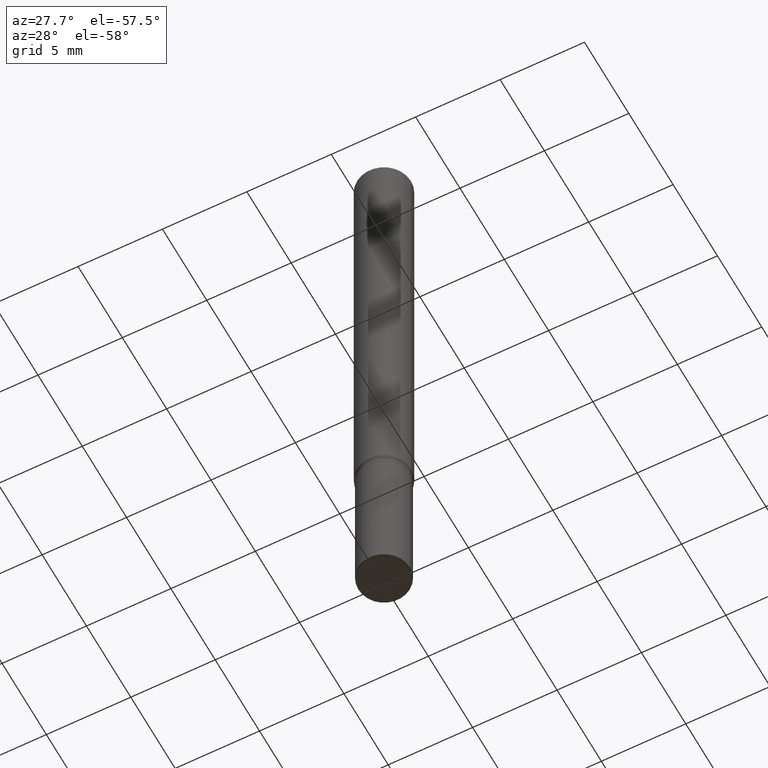
[diagram: clean part render]
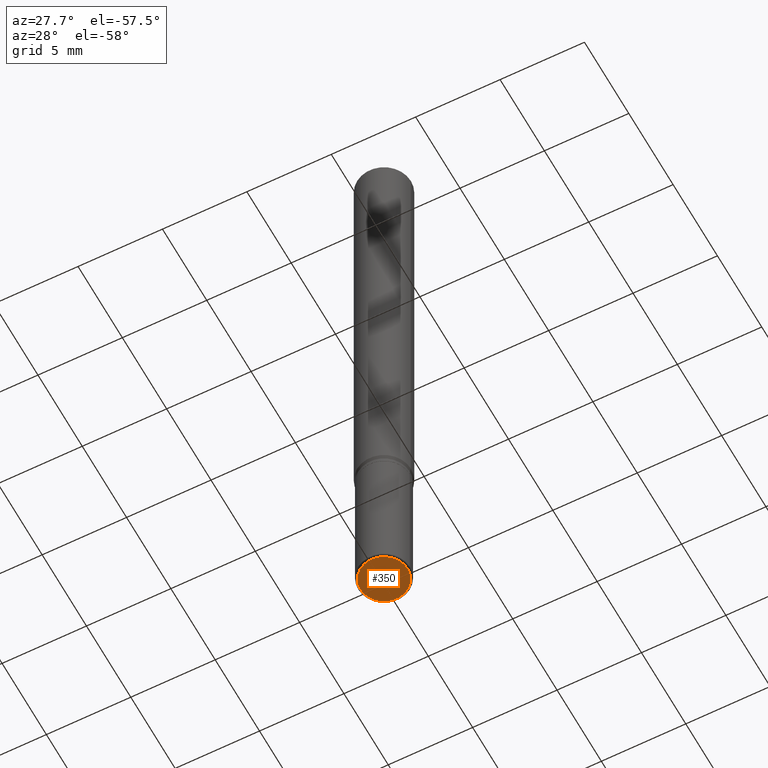
[diagram: same view with one face highlighted and labeled with its STEP entity id]
A machine part, auxiliary view. The second image highlights one B-rep face of the part: STEP entity #350.
In plain terms, the highlighted planar face has unit normal (-0, 0, 1).
Its self-contained STEP definition (entity closure, byte-faithful):
#16 = CARTESIAN_POINT ( 'NONE',  ( 3.582686580359767159E-29, -5.359686688179454114E-15, -1.500000000000000444 ) ) ;
#43 = DIRECTION ( 'NONE',  ( -2.445468806185136597E-29, 3.491481338843145583E-15, 1.000000000000000000 ) ) ;
#63 = CARTESIAN_POINT ( 'NONE',  ( -0.05499999999999999334, -4.819931231855553084E-15, -1.500000000000000444 ) ) ;
#104 = DIRECTION ( 'NONE',  ( 1.000000000000000000, -6.982962677686265922E-15, 4.876176775795935793E-29 ) ) ;
#110 = ORIENTED_EDGE ( 'NONE', *, *, #274, .F. ) ;
#131 = DIRECTION ( 'NONE',  ( 1.000000000000000000, -6.982962677686263555E-15, 0.000000000000000000 ) ) ;
#137 = CARTESIAN_POINT ( 'NONE',  ( 3.668203209277706016E-29, -5.237222008264719754E-15, -1.500000000000000444 ) ) ;
#172 = DIRECTION ( 'NONE',  ( 1.000000000000000000, -6.982962677686263555E-15, 0.000000000000000000 ) ) ;
#177 = PLANE ( 'NONE',  #402 ) ;
#225 = AXIS2_PLACEMENT_3D ( 'NONE', #256, #43, #172 ) ;
#234 = AXIS2_PLACEMENT_3D ( 'NONE', #137, #330, #131 ) ;
#251 = EDGE_CURVE ( 'NONE', #324, #377, #430, .T. ) ;
#256 = CARTESIAN_POINT ( 'NONE',  ( 3.668203209277706016E-29, -5.237222008264719754E-15, -1.500000000000000444 ) ) ;
#274 = EDGE_CURVE ( 'NONE', #377, #324, #296, .T. ) ;
#296 = CIRCLE ( 'NONE', #225, 0.05499999999999999334 ) ;
#309 = FACE_OUTER_BOUND ( 'NONE', #343, .T. ) ;
#310 = ORIENTED_EDGE ( 'NONE', *, *, #251, .F. ) ;
#324 = VERTEX_POINT ( 'NONE', #376 ) ;
#330 = DIRECTION ( 'NONE',  ( -2.445468806185136597E-29, 3.491481338843145583E-15, 1.000000000000000000 ) ) ;
#343 = EDGE_LOOP ( 'NONE', ( #310, #110 ) ) ;
#350 = ADVANCED_FACE ( 'NONE', ( #309 ), #177, .F. ) ;
#376 = CARTESIAN_POINT ( 'NONE',  ( 0.05499999999999999334, -5.621284955537463950E-15, -1.500000000000000444 ) ) ;
#377 = VERTEX_POINT ( 'NONE', #63 ) ;
#402 = AXIS2_PLACEMENT_3D ( 'NONE', #16, #424, #104 ) ;
#424 = DIRECTION ( 'NONE',  ( -2.438088387897960049E-29, 3.491481338843145188E-15, 1.000000000000000000 ) ) ;
#430 = CIRCLE ( 'NONE', #234, 0.05499999999999999334 ) ;